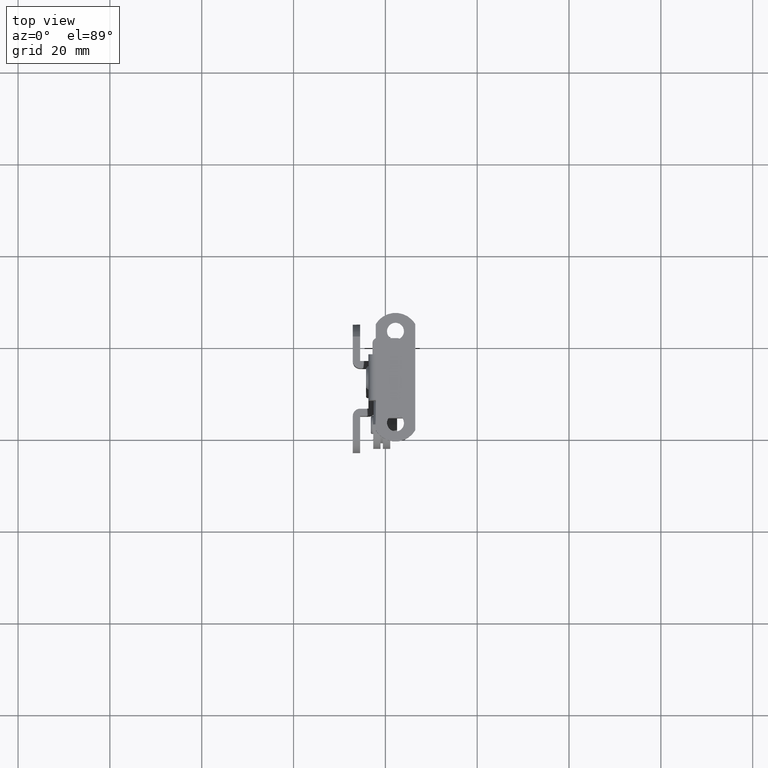
[diagram: clean part render]
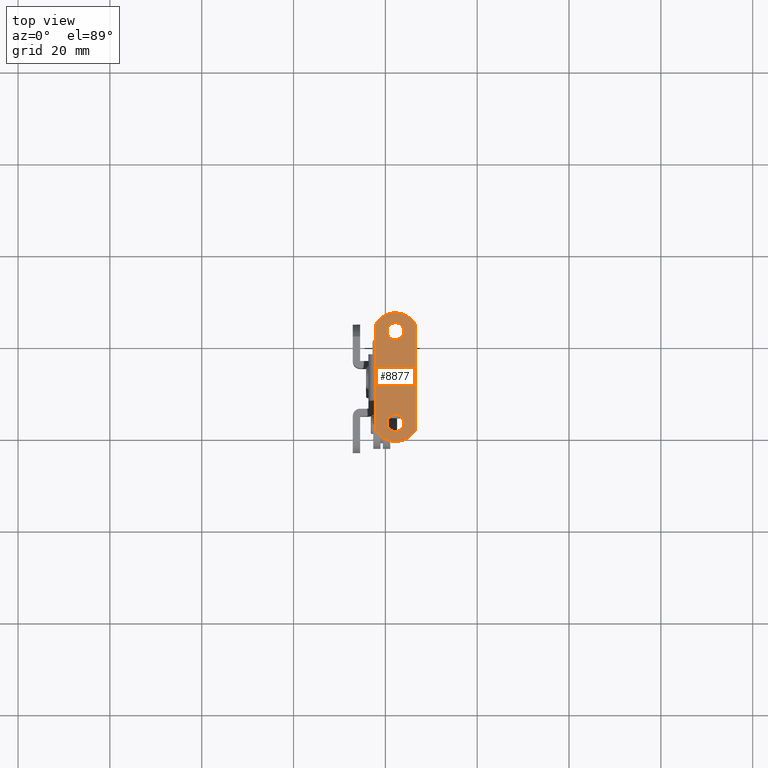
[diagram: same view with one face highlighted and labeled with its STEP entity id]
A machine part, top view. The second image highlights one B-rep face of the part: STEP entity #8877.
In plain terms, the highlighted face is a freeform B-spline surface patch.
Its self-contained STEP definition (entity closure, byte-faithful):
#8377=CARTESIAN_POINT('',(3.519516464081481,-20.296680235860080,79.600030000059704));
#8378=VERTEX_POINT('',#8377);
#8384=CARTESIAN_POINT('',(4.050004222551815,-18.999999999793548,79.600030000059704));
#8385=VERTEX_POINT('',#8384);
#8386=CARTESIAN_POINT('',(4.050004222551815,-18.999999999793548,79.600030000059704));
#8387=CARTESIAN_POINT('',(4.050421700993696,-19.269492349734001,79.600030000059704));
#8388=CARTESIAN_POINT('',(3.943356630970102,-19.748001101032020,79.600030000059803));
#8389=CARTESIAN_POINT('',(3.666486922722802,-20.147320074795658,79.600030000059633));
#8390=CARTESIAN_POINT('',(3.519516464081481,-20.296680235860080,79.600030000059704));
#8391=B_SPLINE_CURVE_WITH_KNOTS('',3,(#8386,#8387,#8388,#8389,#8390),.UNSPECIFIED.,.F.,.U.,(4,1,4),(0.000000148951486,0.808301687296170,1.436981821227520),.UNSPECIFIED.);
#8392=EDGE_CURVE('',#8385,#8378,#8391,.T.);
#8394=CARTESIAN_POINT('',(2.200012666912278,-17.149999999812820,79.600030000059704));
#8395=VERTEX_POINT('',#8394);
#8396=CARTESIAN_POINT('',(2.200012666912278,-17.149999999812820,79.600030000059704));
#8397=CARTESIAN_POINT('',(2.472530836958960,-17.149616444997498,79.600030000059675));
#8398=CARTESIAN_POINT('',(2.986696434590014,-17.265752412011832,79.600030000059519));
#8399=CARTESIAN_POINT('',(3.606600318427899,-17.725194687377840,79.600030000060386));
#8400=CARTESIAN_POINT('',(3.971243332103839,-18.334058567989171,79.600030000058510));
#8401=CARTESIAN_POINT('',(4.050103293975008,-18.788120280530919,79.600030000060784));
#8402=CARTESIAN_POINT('',(4.050004222551815,-18.999999999793548,79.600030000059704));
#8403=B_SPLINE_CURVE_WITH_KNOTS('',3,(#8396,#8397,#8398,#8399,#8400,#8401,#8402),.UNSPECIFIED.,.F.,.U.,(4,1,1,1,4),(0.000000452118131,0.817386631044139,1.543942919226278,2.270516365021165,2.906259924237658),.UNSPECIFIED.);
#8404=EDGE_CURVE('',#8395,#8385,#8403,.T.);
#8406=CARTESIAN_POINT('',(0.880491981022164,-17.703319763726991,79.600030000059704));
#8407=VERTEX_POINT('',#8406);
#8408=CARTESIAN_POINT('',(0.880491981022164,-17.703319763726991,79.600030000059704));
#8409=CARTESIAN_POINT('',(1.073304737795332,-17.506453687820581,79.600030000059732));
#8410=CARTESIAN_POINT('',(1.496134083098144,-17.236061912133259,79.600030000059661));
#8411=CARTESIAN_POINT('',(1.985741423977166,-17.149842500247729,79.600030000059732));
#8412=CARTESIAN_POINT('',(2.200012666912278,-17.149999999812820,79.600030000059704));
#8413=B_SPLINE_CURVE_WITH_KNOTS('',3,(#8408,#8409,#8410,#8411,#8412),.UNSPECIFIED.,.F.,.U.,(4,1,4),(0.000000167421769,0.826474821216759,1.469289737609878),.UNSPECIFIED.);
#8414=EDGE_CURVE('',#8407,#8395,#8413,.T.);
#8450=CARTESIAN_POINT('',(0.350004222551815,-18.999999999793548,79.600030000059704));
#8451=VERTEX_POINT('',#8450);
#8452=CARTESIAN_POINT('',(0.350004222551815,-18.999999999793548,79.600030000059704));
#8453=CARTESIAN_POINT('',(0.349858869139012,-18.790446276175640,79.600030000059775));
#8454=CARTESIAN_POINT('',(0.432283732400527,-18.311588325349302,79.600030000059633));
#8455=CARTESIAN_POINT('',(0.691300767029629,-17.895238900842081,79.600030000059732));
#8456=CARTESIAN_POINT('',(0.880491981022164,-17.703319763726991,79.600030000059704));
#8457=B_SPLINE_CURVE_WITH_KNOTS('',3,(#8452,#8453,#8454,#8455,#8456),.UNSPECIFIED.,.F.,.U.,(4,1,4),(0.000000148951167,0.628680283371219,1.436981821227563),.UNSPECIFIED.);
#8458=EDGE_CURVE('',#8451,#8407,#8457,.T.);
#8460=CARTESIAN_POINT('',(2.199995778191362,-20.849999999774280,79.600030000059704));
#8461=VERTEX_POINT('',#8460);
#8462=CARTESIAN_POINT('',(2.199995778191362,-20.849999999774280,79.600030000059704));
#8463=CARTESIAN_POINT('',(1.927473670211769,-20.850421213609099,79.600030000059718));
#8464=CARTESIAN_POINT('',(1.413320800637789,-20.734202152713909,79.600030000059775));
#8465=CARTESIAN_POINT('',(0.793405098863326,-20.274820883824589,79.600030000059505));
#8466=CARTESIAN_POINT('',(0.428765293544343,-19.665940010429019,79.600030000060130));
#8467=CARTESIAN_POINT('',(0.349905227471502,-19.211879467179259,79.600030000059292));
#8468=CARTESIAN_POINT('',(0.350004222551815,-18.999999999793548,79.600030000059704));
#8469=B_SPLINE_CURVE_WITH_KNOTS('',3,(#8462,#8463,#8464,#8465,#8466,#8467,#8468),.UNSPECIFIED.,.F.,.U.,(4,1,1,1,4),(0.000000452118398,0.817386631044331,1.543942919226378,2.270516365021164,2.906259924237662),.UNSPECIFIED.);
#8470=EDGE_CURVE('',#8461,#8451,#8469,.T.);
#8472=CARTESIAN_POINT('',(3.519516464081481,-20.296680235860080,79.600030000059704));
#8473=CARTESIAN_POINT('',(3.326701000840822,-20.493542411159549,79.600030000059732));
#8474=CARTESIAN_POINT('',(2.903883144217703,-20.763948039423369,79.600030000059618));
#8475=CARTESIAN_POINT('',(2.414250990755896,-20.850152243777011,79.600030000059760));
#8476=CARTESIAN_POINT('',(2.199995778191362,-20.849999999774280,79.600030000059704));
#8477=B_SPLINE_CURVE_WITH_KNOTS('',3,(#8472,#8473,#8474,#8475,#8476),.UNSPECIFIED.,.F.,.U.,(4,1,4),(0.000000167421771,0.826474821216773,1.469289737609893),.UNSPECIFIED.);
#8478=EDGE_CURVE('',#8378,#8461,#8477,.T.);
#8503=CARTESIAN_POINT('',(3.519516464081458,-0.296680235860212,79.600030000059704));
#8504=VERTEX_POINT('',#8503);
#8510=CARTESIAN_POINT('',(4.050004222551815,1.000000000206350,79.600030000059704));
#8511=VERTEX_POINT('',#8510);
#8512=CARTESIAN_POINT('',(4.050004222551815,1.000000000206350,79.600030000059704));
#8513=CARTESIAN_POINT('',(4.050156883547558,0.790451611037556,79.600030000059775));
#8514=CARTESIAN_POINT('',(3.967709278731722,0.311582486994826,79.600030000059689));
#8515=CARTESIAN_POINT('',(3.708716026973195,-0.104757931217118,79.600030000059647));
#8516=CARTESIAN_POINT('',(3.519516464081458,-0.296680235860212,79.600030000059704));
#8517=B_SPLINE_CURVE_WITH_KNOTS('',3,(#8512,#8513,#8514,#8515,#8516),.UNSPECIFIED.,.F.,.U.,(4,1,4),(0.000000148951225,0.628680283371217,1.436981821227566),.UNSPECIFIED.);
#8518=EDGE_CURVE('',#8511,#8504,#8517,.T.);
#8520=CARTESIAN_POINT('',(2.200012666912278,2.850000000187078,79.600030000059704));
#8521=VERTEX_POINT('',#8520);
#8522=CARTESIAN_POINT('',(2.200012666912278,2.850000000187078,79.600030000059704));
#8523=CARTESIAN_POINT('',(2.472531238502752,2.850385109211354,79.600030000059576));
#8524=CARTESIAN_POINT('',(2.986690553892622,2.734241236174182,79.600030000060030));
#8525=CARTESIAN_POINT('',(3.606616027007946,2.274817684937949,79.600030000059604));
#8526=CARTESIAN_POINT('',(3.971214675559900,1.665917620201236,79.600030000059903));
#8527=CARTESIAN_POINT('',(4.050124397527444,1.211900368819067,79.600030000059704));
#8528=CARTESIAN_POINT('',(4.050004222551815,1.000000000206350,79.600030000059704));
#8529=B_SPLINE_CURVE_WITH_KNOTS('',3,(#8522,#8523,#8524,#8525,#8526,#8527,#8528),.UNSPECIFIED.,.F.,.U.,(4,1,1,1,4),(0.000000452118384,0.817386631044276,1.543942919226323,2.270516365021162,2.906259924237661),.UNSPECIFIED.);
#8530=EDGE_CURVE('',#8521,#8511,#8529,.T.);
#8532=CARTESIAN_POINT('',(0.880491981022175,2.296680236272910,79.600030000059704));
#8533=VERTEX_POINT('',#8532);
#8534=CARTESIAN_POINT('',(0.880491981022175,2.296680236272910,79.600030000059704));
#8535=CARTESIAN_POINT('',(1.030567422475460,2.449612602008629,79.600030000059732));
#8536=CARTESIAN_POINT('',(1.435225461789091,2.738408983359786,79.600030000059689));
#8537=CARTESIAN_POINT('',(1.924454712273495,2.850458036630894,79.600030000059789));
#8538=CARTESIAN_POINT('',(2.200012666912278,2.850000000187078,79.600030000059704));
#8539=B_SPLINE_CURVE_WITH_KNOTS('',3,(#8534,#8535,#8536,#8537,#8538),.UNSPECIFIED.,.F.,.U.,(4,1,4),(0.000000167421822,0.642815083292843,1.469289737609864),.UNSPECIFIED.);
#8540=EDGE_CURVE('',#8533,#8521,#8539,.T.);
#8576=CARTESIAN_POINT('',(0.350004222551815,1.000000000206350,79.600030000059704));
#8577=VERTEX_POINT('',#8576);
#8578=CARTESIAN_POINT('',(0.350004222551815,1.000000000206350,79.600030000059704));
#8579=CARTESIAN_POINT('',(0.349895310536610,1.209545303227829,79.600030000059817));
#8580=CARTESIAN_POINT('',(0.432229150194607,1.688424057993881,79.600030000059590));
#8581=CARTESIAN_POINT('',(0.691322148842620,2.104756669348379,79.600030000059760));
#8582=CARTESIAN_POINT('',(0.880491981022175,2.296680236272910,79.600030000059704));
#8583=B_SPLINE_CURVE_WITH_KNOTS('',3,(#8578,#8579,#8580,#8581,#8582),.UNSPECIFIED.,.F.,.U.,(4,1,4),(0.000000148951222,0.628680283371217,1.436981821227566),.UNSPECIFIED.);
#8584=EDGE_CURVE('',#8577,#8533,#8583,.T.);
#8586=CARTESIAN_POINT('',(2.199995778191362,-0.849999999774378,79.600030000059704));
#8587=VERTEX_POINT('',#8586);
#8588=CARTESIAN_POINT('',(2.199995778191362,-0.849999999774378,79.600030000059704));
#8589=CARTESIAN_POINT('',(1.927474028353173,-0.850422426979907,79.600030000059775));
#8590=CARTESIAN_POINT('',(1.413324488223096,-0.734197005100245,79.600030000059590));
#8591=CARTESIAN_POINT('',(0.793390372175233,-0.274831531831705,79.600030000059760));
#8592=CARTESIAN_POINT('',(0.428793137076562,0.334080670548743,79.600030000059732));
#8593=CARTESIAN_POINT('',(0.349884049337143,0.788104655905222,79.600030000059661));
#8594=CARTESIAN_POINT('',(0.350004222551815,1.000000000206350,79.600030000059704));
#8595=B_SPLINE_CURVE_WITH_KNOTS('',3,(#8588,#8589,#8590,#8591,#8592,#8593,#8594),.UNSPECIFIED.,.F.,.U.,(4,1,1,1,4),(0.000000452118472,0.817386631044341,1.543942919226366,2.270516365021185,2.906259924237665),.UNSPECIFIED.);
#8596=EDGE_CURVE('',#8587,#8577,#8595,.T.);
#8598=CARTESIAN_POINT('',(3.519516464081458,-0.296680235860212,79.600030000059704));
#8599=CARTESIAN_POINT('',(3.369451069345423,-0.449604562513209,79.600030000059689));
#8600=CARTESIAN_POINT('',(2.964778945455922,-0.738412505007757,79.600030000059661));
#8601=CARTESIAN_POINT('',(2.475552677013091,-0.850456736212843,79.600030000059760));
#8602=CARTESIAN_POINT('',(2.199995778191362,-0.849999999774378,79.600030000059704));
#8603=B_SPLINE_CURVE_WITH_KNOTS('',3,(#8598,#8599,#8600,#8601,#8602),.UNSPECIFIED.,.F.,.U.,(4,1,4),(0.000000167421796,0.642815083292829,1.469289737609857),.UNSPECIFIED.);
#8604=EDGE_CURVE('',#8504,#8587,#8603,.T.);
#8795=CARTESIAN_POINT('',(-2.529568795423440,6.398644203758953,79.600030000059803));
#8796=CARTESIAN_POINT('',(6.929571438201427,6.398644203758953,79.600030000059803));
#8797=CARTESIAN_POINT('',(-2.529568795423440,-24.398604900043491,79.600030000059803));
#8798=CARTESIAN_POINT('',(6.929571438201427,-24.398604900043491,79.600030000059803));
#8799=B_SPLINE_SURFACE_WITH_KNOTS('',1,1,((#8795,#8797),(#8796,#8798)),.UNSPECIFIED.,.F.,.F.,.U.,(2,2),(2,2),(0.0,9.459140233624868),(0.0,30.797249103802439),.UNSPECIFIED.);
#8800=CARTESIAN_POINT('',(-2.099998793938625,-13.999999999999060,79.600030000059704));
#8801=VERTEX_POINT('',#8800);
#8802=CARTESIAN_POINT('',(-2.099998752266020,-20.551470246239951,79.600030000059803));
#8803=VERTEX_POINT('',#8802);
#8804=CARTESIAN_POINT('',(-2.099998793938625,-13.999999999999060,79.600030000059704));
#8805=CARTESIAN_POINT('',(-2.099998752266020,-20.551470246239951,79.600030000059803));
#8806=QUASI_UNIFORM_CURVE('',1,(#8804,#8805),.UNSPECIFIED.,.F.,.U.);
#8807=EDGE_CURVE('',#8801,#8803,#8806,.T.);
#8808=ORIENTED_EDGE('',*,*,#8807,.T.);
#8809=CARTESIAN_POINT('',(6.500001222551791,-20.551470124656198,79.600030000059803));
#8810=VERTEX_POINT('',#8809);
#8811=CARTESIAN_POINT('',(6.500001222551791,-20.551470124656198,79.600030000059803));
#8812=CARTESIAN_POINT('',(6.156681676655627,-21.131587063605298,79.600030000059931));
#8813=CARTESIAN_POINT('',(5.322939716120015,-22.046932595646329,79.600030000059860));
#8814=CARTESIAN_POINT('',(3.861081177371498,-22.787818110662311,79.600030000059718));
#8815=CARTESIAN_POINT('',(2.606535540213723,-23.023597942100729,79.600030000059860));
#8816=CARTESIAN_POINT('',(1.415353148511272,-22.985084850915289,79.600030000060144));
#8817=CARTESIAN_POINT('',(0.076281267941663,-22.619444798813579,79.600030000058965));
#8818=CARTESIAN_POINT('',(-1.204609935375384,-21.775789947397950,79.600030000059675));
#8819=CARTESIAN_POINT('',(-1.866206461901636,-20.945647267164560,79.600030000059959));
#8820=CARTESIAN_POINT('',(-2.099998752266020,-20.551470246239951,79.600030000059803));
#8821=B_SPLINE_CURVE_WITH_KNOTS('',3,(#8811,#8812,#8813,#8814,#8815,#8816,#8817,#8818,#8819,#8820),.UNSPECIFIED.,.F.,.U.,(4,1,1,1,1,1,1,4),(0.000000771351861,2.022007692951556,3.639709323975448,4.852963817530978,5.823351063901610,7.198406460025746,8.977868423690293,10.352809537444591),.UNSPECIFIED.);
#8822=EDGE_CURVE('',#8810,#8803,#8821,.T.);
#8823=ORIENTED_EDGE('',*,*,#8822,.F.);
#8824=CARTESIAN_POINT('',(6.500001189556301,2.551470180676470,79.600030000059803));
#8825=VERTEX_POINT('',#8824);
#8826=CARTESIAN_POINT('',(6.500001222551791,-20.551470124656198,79.600030000059803));
#8827=CARTESIAN_POINT('',(6.500001189556301,2.551470180676470,79.600030000059803));
#8828=QUASI_UNIFORM_CURVE('',1,(#8826,#8827),.UNSPECIFIED.,.F.,.U.);
#8829=EDGE_CURVE('',#8810,#8825,#8828,.T.);
#8830=ORIENTED_EDGE('',*,*,#8829,.T.);
#8831=CARTESIAN_POINT('',(-2.099998810443780,2.551470148605485,79.600030000059803));
#8832=VERTEX_POINT('',#8831);
#8833=CARTESIAN_POINT('',(-2.099998810443780,2.551470148605485,79.600030000059803));
#8834=CARTESIAN_POINT('',(-1.866241382930102,2.945705100179476,79.600030000059945));
#8835=CARTESIAN_POINT('',(-1.255372326979098,3.711732571247943,79.600030000059647));
#8836=CARTESIAN_POINT('',(-0.067601597780722,4.536165892641252,79.600030000059704));
#8837=CARTESIAN_POINT('',(1.174374247656992,4.941141579819099,79.600030000059860));
#8838=CARTESIAN_POINT('',(2.389332131011740,5.039668334397898,79.600030000059817));
#8839=CARTESIAN_POINT('',(3.653639185878070,4.854462631877717,79.600030000059874));
#8840=CARTESIAN_POINT('',(4.795002204736567,4.332879177175099,79.600030000059689));
#8841=CARTESIAN_POINT('',(5.791014783534149,3.541351878895813,79.600030000060073));
#8842=CARTESIAN_POINT('',(6.266269998287973,2.945724099591747,79.600030000059760));
#8843=CARTESIAN_POINT('',(6.500001189556301,2.551470180676470,79.600030000059803));
#8844=B_SPLINE_CURVE_WITH_KNOTS('',3,(#8833,#8834,#8835,#8836,#8837,#8838,#8839,#8840,#8841,#8842,#8843),.UNSPECIFIED.,.F.,.U.,(4,1,1,1,1,1,1,1,4),(0.000000771349079,1.374964622760571,2.911730999685775,4.286717097504349,5.257150795703505,6.551346262370020,8.088139597075791,8.977868466486816,10.352809586794660),.UNSPECIFIED.);
#8845=EDGE_CURVE('',#8832,#8825,#8844,.T.);
#8846=ORIENTED_EDGE('',*,*,#8845,.F.);
#8847=CARTESIAN_POINT('',(-2.099998793945885,-3.999999999999295,79.600030000059803));
#8848=VERTEX_POINT('',#8847);
#8849=CARTESIAN_POINT('',(-2.099998810443780,2.551470148605485,79.600030000059803));
#8850=CARTESIAN_POINT('',(-2.099998793945885,-3.999999999999295,79.600030000059803));
#8851=QUASI_UNIFORM_CURVE('',1,(#8849,#8850),.UNSPECIFIED.,.F.,.U.);
#8852=EDGE_CURVE('',#8832,#8848,#8851,.T.);
#8853=ORIENTED_EDGE('',*,*,#8852,.T.);
#8854=CARTESIAN_POINT('',(-2.099998793938625,-13.999999999999060,79.600030000059704));
#8855=CARTESIAN_POINT('',(-2.099998793945885,-3.999999999999295,79.600030000059803));
#8856=QUASI_UNIFORM_CURVE('',1,(#8854,#8855),.UNSPECIFIED.,.F.,.U.);
#8857=EDGE_CURVE('',#8801,#8848,#8856,.T.);
#8858=ORIENTED_EDGE('',*,*,#8857,.F.);
#8859=EDGE_LOOP('',(#8808,#8823,#8830,#8846,#8853,#8858));
#8860=FACE_OUTER_BOUND('',#8859,.T.);
#8861=ORIENTED_EDGE('',*,*,#8530,.T.);
#8862=ORIENTED_EDGE('',*,*,#8518,.T.);
#8863=ORIENTED_EDGE('',*,*,#8604,.T.);
#8864=ORIENTED_EDGE('',*,*,#8596,.T.);
#8865=ORIENTED_EDGE('',*,*,#8584,.T.);
#8866=ORIENTED_EDGE('',*,*,#8540,.T.);
#8867=EDGE_LOOP('',(#8861,#8862,#8863,#8864,#8865,#8866));
#8868=FACE_BOUND('',#8867,.T.);
#8869=ORIENTED_EDGE('',*,*,#8404,.T.);
#8870=ORIENTED_EDGE('',*,*,#8392,.T.);
#8871=ORIENTED_EDGE('',*,*,#8478,.T.);
#8872=ORIENTED_EDGE('',*,*,#8470,.T.);
#8873=ORIENTED_EDGE('',*,*,#8458,.T.);
#8874=ORIENTED_EDGE('',*,*,#8414,.T.);
#8875=EDGE_LOOP('',(#8869,#8870,#8871,#8872,#8873,#8874));
#8876=FACE_BOUND('',#8875,.T.);
#8877=ADVANCED_FACE('',(#8860,#8868,#8876),#8799,.F.);